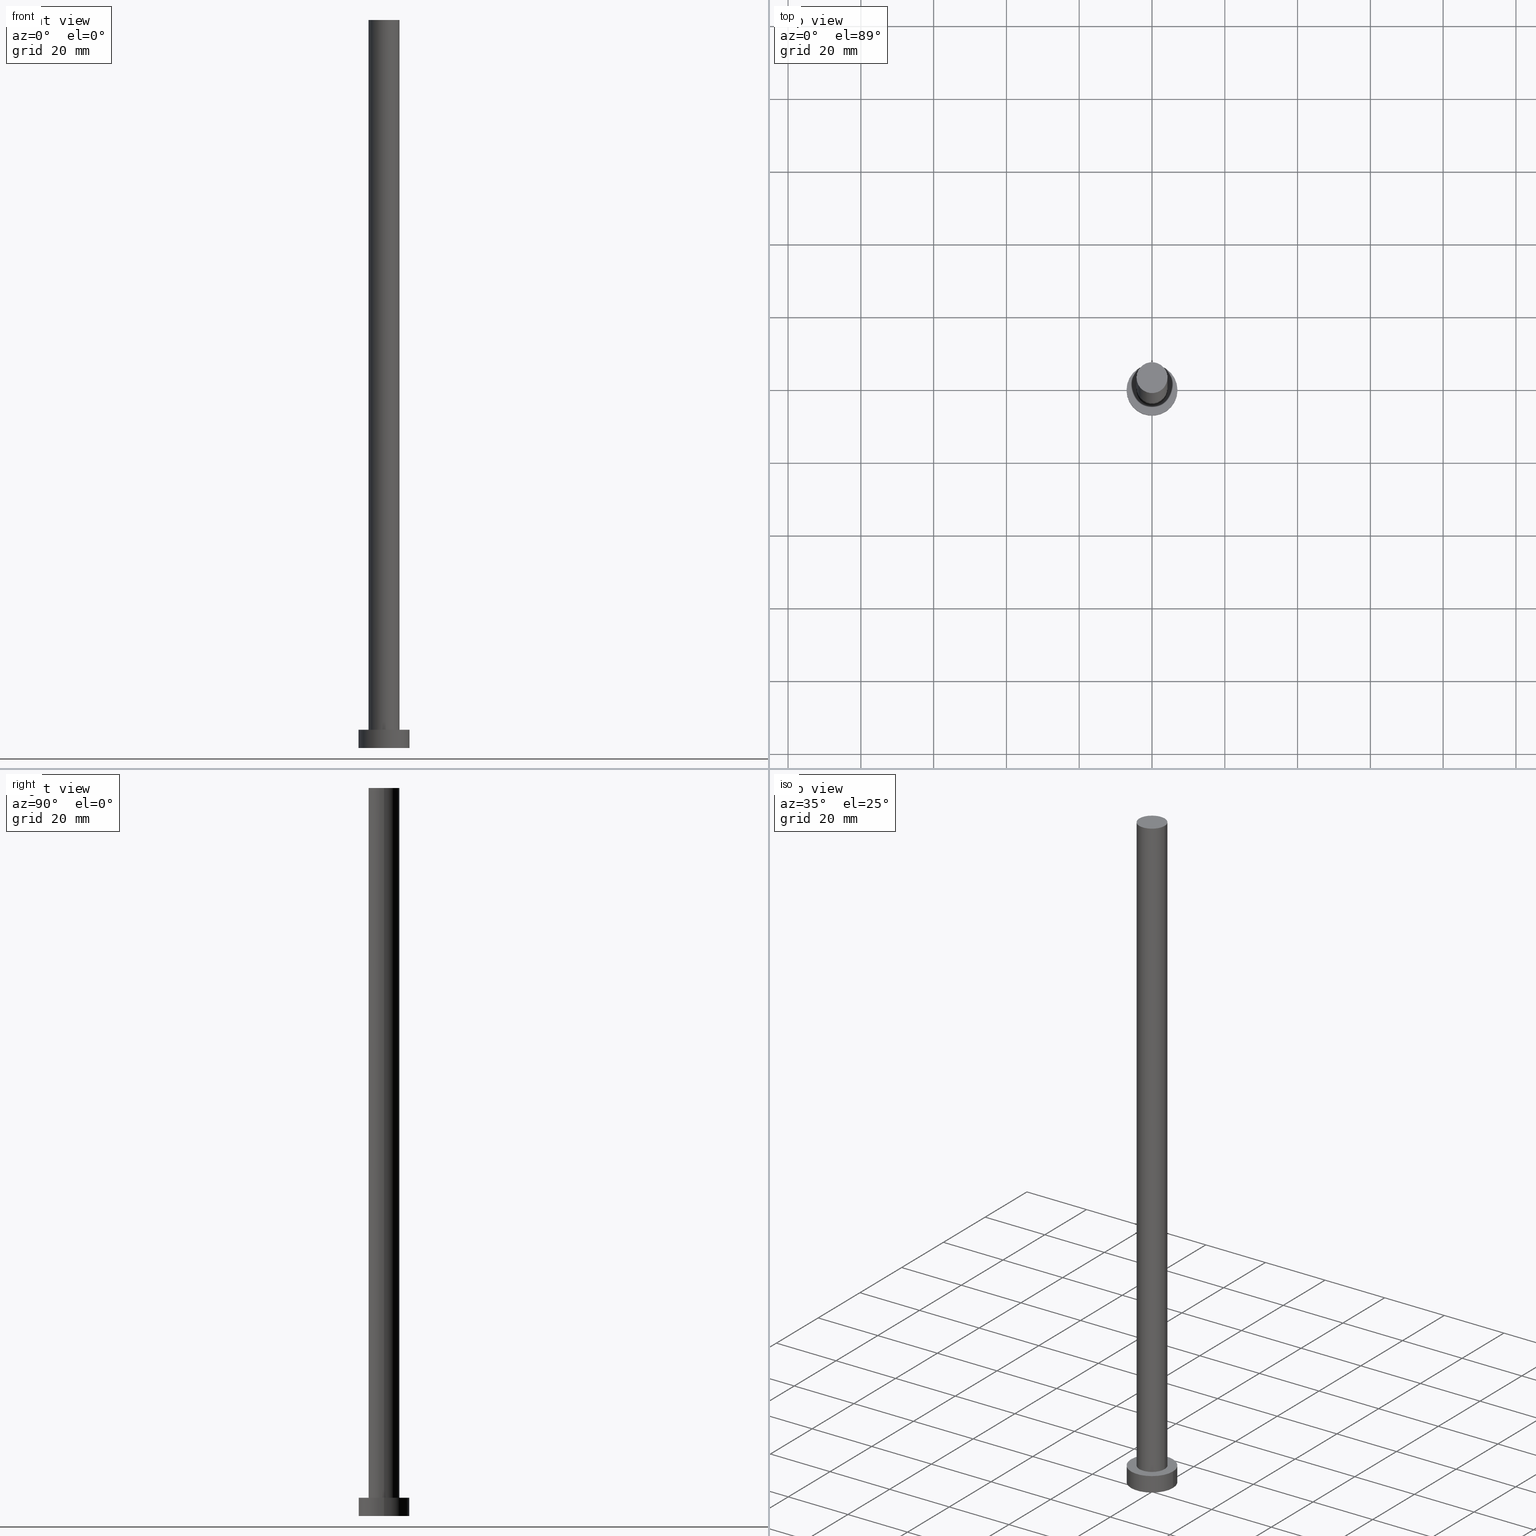
[diagram: canonical four-view strip — front | top / right | iso, engineering-drawing reading convention]
A machine part, canonical four-view strip (front | top / right | iso — engineering-drawing reading convention). The complete STEP part file that produces these views, byte-faithful:
ISO-10303-21;
HEADER;
FILE_DESCRIPTION (( 'STEP AP203' ),
    '1' );
FILE_NAME ('b32a.STEP',
    '2023-02-13T13:53:23',
    ( '' ),
    ( '' ),
    'SwSTEP 2.0',
    'SolidWorks 2019',
    '' );
FILE_SCHEMA (( 'CONFIG_CONTROL_DESIGN' ));
ENDSEC;

DATA;
#1 = PERSON_AND_ORGANIZATION ( #107, #112 ) ;
#2 = CIRCLE ( 'NONE', #145, 4.250000000000000000 ) ;
#3 = FACE_OUTER_BOUND ( 'NONE', #15, .T. ) ;
#4 = LOCAL_TIME ( 14, 53, 23.00000000000000000, #10 ) ;
#5 = LINE ( 'NONE', #56, #81 ) ;
#6 = AXIS2_PLACEMENT_3D ( 'NONE', #20, #221, #121 ) ;
#7 = DIRECTION ( 'NONE',  ( 1.000000000000000000, 0.000000000000000000, 0.000000000000000000 ) ) ;
#8 = DIRECTION ( 'NONE',  ( 0.000000000000000000, 0.000000000000000000, 1.000000000000000000 ) ) ;
#9 = PRODUCT_DEFINITION ( 'NEZN�M�', '', #25, #76 ) ;
#10 = COORDINATED_UNIVERSAL_TIME_OFFSET ( 1, 0, .AHEAD. ) ;
#11 = PERSON_AND_ORGANIZATION ( #107, #112 ) ;
#12 = ORIENTED_EDGE ( 'NONE', *, *, #79, .F. ) ;
#13 = VERTEX_POINT ( 'NONE', #32 ) ;
#14 = AXIS2_PLACEMENT_3D ( 'NONE', #126, #165, #78 ) ;
#15 = EDGE_LOOP ( 'NONE', ( #28, #207, #44, #172 ) ) ;
#16 = APPROVAL_DATE_TIME ( #187, #62 ) ;
#17 = CIRCLE ( 'NONE', #211, 7.000000000000000000 ) ;
#18 = CYLINDRICAL_SURFACE ( 'NONE', #100, 7.000000000000000000 ) ;
#19 = CARTESIAN_POINT ( 'NONE',  ( 4.250000000000000000, 5.204748896376250699E-16, 5.000000000000000000 ) ) ;
#20 = CARTESIAN_POINT ( 'NONE',  ( 0.000000000000000000, 0.000000000000000000, 0.000000000000000000 ) ) ;
#21 = UNCERTAINTY_MEASURE_WITH_UNIT (LENGTH_MEASURE( 1.000000000000000082E-05 ), #182, 'distance_accuracy_value', 'NONE');
#22 = ADVANCED_FACE ( 'NONE', ( #113, #246 ), #230, .T. ) ;
#23 = CARTESIAN_POINT ( 'NONE',  ( 0.000000000000000000, 0.000000000000000000, 200.0000000000000000 ) ) ;
#24 = CARTESIAN_POINT ( 'NONE',  ( 0.000000000000000000, 0.000000000000000000, 0.000000000000000000 ) ) ;
#25 = PRODUCT_DEFINITION_FORMATION_WITH_SPECIFIED_SOURCE ( 'LIBOVOLN�', '', #48, .NOT_KNOWN. ) ;
#26 = EDGE_CURVE ( 'NONE', #63, #42, #250, .T. ) ;
#27 = DATE_TIME_ROLE ( 'creation_date' ) ;
#28 = ORIENTED_EDGE ( 'NONE', *, *, #94, .F. ) ;
#29 = ORIENTED_EDGE ( 'NONE', *, *, #209, .T. ) ;
#30 = EDGE_LOOP ( 'NONE', ( #29, #248 ) ) ;
#31 = LOCAL_TIME ( 14, 53, 23.00000000000000000, #162 ) ;
#32 = CARTESIAN_POINT ( 'NONE',  ( -7.000000000000000000, 0.000000000000000000, 0.000000000000000000 ) ) ;
#33 = APPROVAL_STATUS ( 'not_yet_approved' ) ;
#34 = CALENDAR_DATE ( 2023, 13, 2 ) ;
#35 = CARTESIAN_POINT ( 'NONE',  ( 7.000000000000000000, 8.572527594031473190E-16, 5.000000000000000000 ) ) ;
#36 = APPLICATION_CONTEXT ( 'configuration controlled 3d designs of mechanical parts and assemblies' ) ;
#37 = PERSON_AND_ORGANIZATION_ROLE ( 'creator' ) ;
#38 = DIRECTION ( 'NONE',  ( 0.000000000000000000, 0.000000000000000000, 1.000000000000000000 ) ) ;
#39 = DIRECTION ( 'NONE',  ( 0.000000000000000000, 0.000000000000000000, 1.000000000000000000 ) ) ;
#40 = ADVANCED_FACE ( 'NONE', ( #247 ), #65, .T. ) ;
#41 = DATE_AND_TIME ( #60, #102 ) ;
#42 = VERTEX_POINT ( 'NONE', #156 ) ;
#43 = CC_DESIGN_PERSON_AND_ORGANIZATION_ASSIGNMENT ( #226, #87, ( #9 ) ) ;
#44 = ORIENTED_EDGE ( 'NONE', *, *, #244, .T. ) ;
#45 = VERTEX_POINT ( 'NONE', #86 ) ;
#46 = ADVANCED_FACE ( 'NONE', ( #3 ), #18, .T. ) ;
#47 = ORIENTED_EDGE ( 'NONE', *, *, #119, .T. ) ;
#48 = PRODUCT ( 'b32a', 'b32a', '', ( #149 ) ) ;
#49 = APPROVAL_PERSON_ORGANIZATION ( #114, #62, #194 ) ;
#50 = DIRECTION ( 'NONE',  ( 0.000000000000000000, 0.000000000000000000, 1.000000000000000000 ) ) ;
#51 = CC_DESIGN_APPROVAL ( #128, ( #151 ) ) ;
#52 = CC_DESIGN_PERSON_AND_ORGANIZATION_ASSIGNMENT ( #254, #117, ( #25 ) ) ;
#53 = AXIS2_PLACEMENT_3D ( 'NONE', #253, #50, #137 ) ;
#54 = CARTESIAN_POINT ( 'NONE',  ( 0.000000000000000000, 0.000000000000000000, 200.0000000000000000 ) ) ;
#55 =( GEOMETRIC_REPRESENTATION_CONTEXT ( 3 ) GLOBAL_UNCERTAINTY_ASSIGNED_CONTEXT ( ( #21 ) ) GLOBAL_UNIT_ASSIGNED_CONTEXT ( ( #182, #101, #57 ) ) REPRESENTATION_CONTEXT ( 'NONE', 'WORKASPACE' ) );
#56 = CARTESIAN_POINT ( 'NONE',  ( -4.250000000000000000, 0.000000000000000000, 200.0000000000000000 ) ) ;
#57 =( NAMED_UNIT ( * ) SI_UNIT ( $, .STERADIAN. ) SOLID_ANGLE_UNIT ( ) );
#58 = CYLINDRICAL_SURFACE ( 'NONE', #233, 4.250000000000000000 ) ;
#59 = AXIS2_PLACEMENT_3D ( 'NONE', #24, #39, #200 ) ;
#60 = CALENDAR_DATE ( 2023, 13, 2 ) ;
#61 = EDGE_LOOP ( 'NONE', ( #111, #83, #47, #225 ) ) ;
#62 = APPROVAL ( #33, 'NEUR�EN�' ) ;
#63 = VERTEX_POINT ( 'NONE', #251 ) ;
#64 = DIRECTION ( 'NONE',  ( 1.000000000000000000, 0.000000000000000000, 0.000000000000000000 ) ) ;
#65 = CYLINDRICAL_SURFACE ( 'NONE', #191, 7.000000000000000000 ) ;
#66 = APPLICATION_CONTEXT ( 'configuration controlled 3d designs of mechanical parts and assemblies' ) ;
#67 = VERTEX_POINT ( 'NONE', #19 ) ;
#68 = EDGE_CURVE ( 'NONE', #45, #13, #116, .T. ) ;
#69 = ORIENTED_EDGE ( 'NONE', *, *, #170, .T. ) ;
#70 = CARTESIAN_POINT ( 'NONE',  ( 0.000000000000000000, 0.000000000000000000, 0.000000000000000000 ) ) ;
#71 = CIRCLE ( 'NONE', #59, 7.000000000000000000 ) ;
#72 = DIRECTION ( 'NONE',  ( -0.000000000000000000, -0.000000000000000000, -1.000000000000000000 ) ) ;
#73 = DIRECTION ( 'NONE',  ( 1.000000000000000000, 0.000000000000000000, -0.000000000000000000 ) ) ;
#74 = COORDINATED_UNIVERSAL_TIME_OFFSET ( 1, 0, .AHEAD. ) ;
#75 = DATE_AND_TIME ( #97, #181 ) ;
#76 = DESIGN_CONTEXT ( 'detailed design', #66, 'design' ) ;
#77 = CC_DESIGN_APPROVAL ( #62, ( #9 ) ) ;
#78 = DIRECTION ( 'NONE',  ( 1.000000000000000000, 0.000000000000000000, 0.000000000000000000 ) ) ;
#79 = EDGE_CURVE ( 'NONE', #63, #67, #255, .T. ) ;
#80 = DIRECTION ( 'NONE',  ( -1.000000000000000000, 0.000000000000000000, 0.000000000000000000 ) ) ;
#81 = VECTOR ( 'NONE', #163, 1000.000000000000000 ) ;
#82 = APPLICATION_PROTOCOL_DEFINITION ( 'international standard', 'config_control_design', 1994, #66 ) ;
#83 = ORIENTED_EDGE ( 'NONE', *, *, #79, .T. ) ;
#84 = DIRECTION ( 'NONE',  ( 0.000000000000000000, 0.000000000000000000, 1.000000000000000000 ) ) ;
#85 = CLOSED_SHELL ( 'NONE', ( #217, #46, #40, #22, #146, #193, #115 ) ) ;
#86 = CARTESIAN_POINT ( 'NONE',  ( -7.000000000000000000, 0.000000000000000000, 5.000000000000000000 ) ) ;
#87 = PERSON_AND_ORGANIZATION_ROLE ( 'creator' ) ;
#88 = DIRECTION ( 'NONE',  ( -0.000000000000000000, -0.000000000000000000, -1.000000000000000000 ) ) ;
#89 = PRODUCT_DEFINITION_SHAPE ( 'NONE', 'NONE',  #9 ) ;
#90 = CC_DESIGN_SECURITY_CLASSIFICATION ( #151, ( #25 ) ) ;
#91 = EDGE_CURVE ( 'NONE', #42, #63, #243, .T. ) ;
#92 = CARTESIAN_POINT ( 'NONE',  ( 0.000000000000000000, 0.000000000000000000, 200.0000000000000000 ) ) ;
#93 = CARTESIAN_POINT ( 'NONE',  ( 0.000000000000000000, 0.000000000000000000, 5.000000000000000000 ) ) ;
#94 = EDGE_CURVE ( 'NONE', #106, #45, #180, .T. ) ;
#95 = DIRECTION ( 'NONE',  ( 1.000000000000000000, 0.000000000000000000, 0.000000000000000000 ) ) ;
#96 = CC_DESIGN_APPROVAL ( #198, ( #25 ) ) ;
#97 = CALENDAR_DATE ( 2023, 13, 2 ) ;
#98 = CALENDAR_DATE ( 2023, 13, 2 ) ;
#99 = FACE_OUTER_BOUND ( 'NONE', #208, .T. ) ;
#100 = AXIS2_PLACEMENT_3D ( 'NONE', #213, #154, #214 ) ;
#101 =( NAMED_UNIT ( * ) PLANE_ANGLE_UNIT ( ) SI_UNIT ( $, .RADIAN. ) );
#102 = LOCAL_TIME ( 14, 53, 23.00000000000000000, #206 ) ;
#103 = CARTESIAN_POINT ( 'NONE',  ( 0.000000000000000000, 0.000000000000000000, 0.000000000000000000 ) ) ;
#104 = PERSON_AND_ORGANIZATION_ROLE ( 'design_owner' ) ;
#105 = EDGE_CURVE ( 'NONE', #106, #131, #160, .T. ) ;
#106 = VERTEX_POINT ( 'NONE', #35 ) ;
#107 = PERSON ( 'NEUR�EN�', 'NEUR�EN�', 'NEUR�EN�', ('NEUR�EN�'), ('NEUR�EN�'), ('NEUR�EN�') ) ;
#108 = CARTESIAN_POINT ( 'NONE',  ( 0.000000000000000000, 0.000000000000000000, 200.0000000000000000 ) ) ;
#109 = ORIENTED_EDGE ( 'NONE', *, *, #170, .F. ) ;
#110 = AXIS2_PLACEMENT_3D ( 'NONE', #93, #179, #138 ) ;
#111 = ORIENTED_EDGE ( 'NONE', *, *, #26, .F. ) ;
#112 = ORGANIZATION ( 'NEUR�EN�', 'NEUR�EN�', '' ) ;
#113 = FACE_BOUND ( 'NONE', #249, .T. ) ;
#114 = PERSON_AND_ORGANIZATION ( #107, #112 ) ;
#115 = ADVANCED_FACE ( 'NONE', ( #143 ), #195, .T. ) ;
#116 = LINE ( 'NONE', #178, #159 ) ;
#117 = PERSON_AND_ORGANIZATION_ROLE ( 'design_supplier' ) ;
#118 = CARTESIAN_POINT ( 'NONE',  ( 0.000000000000000000, 0.000000000000000000, 5.000000000000000000 ) ) ;
#119 = EDGE_CURVE ( 'NONE', #67, #153, #2, .T. ) ;
#120 = DIRECTION ( 'NONE',  ( -1.000000000000000000, 0.000000000000000000, 0.000000000000000000 ) ) ;
#121 = DIRECTION ( 'NONE',  ( 1.000000000000000000, 0.000000000000000000, -0.000000000000000000 ) ) ;
#122 = AXIS2_PLACEMENT_3D ( 'NONE', #70, #252, #64 ) ;
#123 = ORIENTED_EDGE ( 'NONE', *, *, #26, .T. ) ;
#124 = DIRECTION ( 'NONE',  ( -0.000000000000000000, -0.000000000000000000, -1.000000000000000000 ) ) ;
#125 = AXIS2_PLACEMENT_3D ( 'NONE', #108, #84, #171 ) ;
#126 = CARTESIAN_POINT ( 'NONE',  ( 0.000000000000000000, 0.000000000000000000, 5.000000000000000000 ) ) ;
#127 = AXIS2_PLACEMENT_3D ( 'NONE', #183, #8, #95 ) ;
#128 = APPROVAL ( #235, 'NEUR�EN�' ) ;
#129 = COORDINATED_UNIVERSAL_TIME_OFFSET ( 1, 0, .AHEAD. ) ;
#130 = APPROVAL_ROLE ( '' ) ;
#131 = VERTEX_POINT ( 'NONE', #161 ) ;
#132 = ORIENTED_EDGE ( 'NONE', *, *, #91, .T. ) ;
#133 = EDGE_CURVE ( 'NONE', #13, #131, #17, .T. ) ;
#134 = EDGE_LOOP ( 'NONE', ( #12, #205, #168, #69 ) ) ;
#135 = ORIENTED_EDGE ( 'NONE', *, *, #133, .F. ) ;
#136 = APPLICATION_PROTOCOL_DEFINITION ( 'international standard', 'config_control_design', 1994, #36 ) ;
#137 = DIRECTION ( 'NONE',  ( 1.000000000000000000, 0.000000000000000000, 0.000000000000000000 ) ) ;
#138 = DIRECTION ( 'NONE',  ( 1.000000000000000000, 0.000000000000000000, 0.000000000000000000 ) ) ;
#139 = PERSON_AND_ORGANIZATION_ROLE ( 'classification_officer' ) ;
#140 = CC_DESIGN_PERSON_AND_ORGANIZATION_ASSIGNMENT ( #228, #104, ( #48 ) ) ;
#141 = LOCAL_TIME ( 14, 53, 23.00000000000000000, #129 ) ;
#142 = PERSON_AND_ORGANIZATION ( #107, #112 ) ;
#143 = FACE_OUTER_BOUND ( 'NONE', #190, .T. ) ;
#144 = FACE_OUTER_BOUND ( 'NONE', #134, .T. ) ;
#145 = AXIS2_PLACEMENT_3D ( 'NONE', #118, #38, #222 ) ;
#146 = ADVANCED_FACE ( 'NONE', ( #99 ), #220, .F. ) ;
#147 = APPROVAL_PERSON_ORGANIZATION ( #245, #198, #130 ) ;
#148 = ADVANCED_BREP_SHAPE_REPRESENTATION ( 'b32a', ( #158, #122 ), #55 ) ;
#149 = MECHANICAL_CONTEXT ( 'NONE', #36, 'mechanical' ) ;
#150 = DIRECTION ( 'NONE',  ( 1.000000000000000000, 0.000000000000000000, -0.000000000000000000 ) ) ;
#151 = SECURITY_CLASSIFICATION ( '', '', #197 ) ;
#152 = CC_DESIGN_DATE_AND_TIME_ASSIGNMENT ( #216, #239, ( #151 ) ) ;
#153 = VERTEX_POINT ( 'NONE', #202 ) ;
#154 = DIRECTION ( 'NONE',  ( -0.000000000000000000, -0.000000000000000000, -1.000000000000000000 ) ) ;
#155 = DIRECTION ( 'NONE',  ( -0.000000000000000000, -0.000000000000000000, -1.000000000000000000 ) ) ;
#156 = CARTESIAN_POINT ( 'NONE',  ( -4.250000000000000000, 0.000000000000000000, 200.0000000000000000 ) ) ;
#157 = SHAPE_DEFINITION_REPRESENTATION ( #89, #148 ) ;
#158 = MANIFOLD_SOLID_BREP ( 'P�idat vysunut�m3', #85 ) ;
#159 = VECTOR ( 'NONE', #72, 1000.000000000000000 ) ;
#160 = LINE ( 'NONE', #238, #166 ) ;
#161 = CARTESIAN_POINT ( 'NONE',  ( 7.000000000000000000, 8.572527594031473190E-16, 0.000000000000000000 ) ) ;
#162 = COORDINATED_UNIVERSAL_TIME_OFFSET ( 1, 0, .AHEAD. ) ;
#163 = DIRECTION ( 'NONE',  ( -0.000000000000000000, -0.000000000000000000, -1.000000000000000000 ) ) ;
#164 = CC_DESIGN_PERSON_AND_ORGANIZATION_ASSIGNMENT ( #11, #37, ( #25 ) ) ;
#165 = DIRECTION ( 'NONE',  ( 0.000000000000000000, 0.000000000000000000, 1.000000000000000000 ) ) ;
#166 = VECTOR ( 'NONE', #215, 1000.000000000000000 ) ;
#167 = DATE_AND_TIME ( #176, #4 ) ;
#168 = ORIENTED_EDGE ( 'NONE', *, *, #237, .T. ) ;
#169 = CARTESIAN_POINT ( 'NONE',  ( 0.000000000000000000, 0.000000000000000000, 5.000000000000000000 ) ) ;
#170 = EDGE_CURVE ( 'NONE', #153, #67, #242, .T. ) ;
#171 = DIRECTION ( 'NONE',  ( 1.000000000000000000, 0.000000000000000000, 0.000000000000000000 ) ) ;
#172 = ORIENTED_EDGE ( 'NONE', *, *, #68, .F. ) ;
#173 = AXIS2_PLACEMENT_3D ( 'NONE', #54, #124, #80 ) ;
#174 = ORIENTED_EDGE ( 'NONE', *, *, #68, .T. ) ;
#175 = CC_DESIGN_PERSON_AND_ORGANIZATION_ASSIGNMENT ( #1, #139, ( #151 ) ) ;
#176 = CALENDAR_DATE ( 2023, 13, 2 ) ;
#177 = AXIS2_PLACEMENT_3D ( 'NONE', #92, #218, #73 ) ;
#178 = CARTESIAN_POINT ( 'NONE',  ( -7.000000000000000000, 0.000000000000000000, 5.000000000000000000 ) ) ;
#179 = DIRECTION ( 'NONE',  ( 0.000000000000000000, 0.000000000000000000, 1.000000000000000000 ) ) ;
#180 = CIRCLE ( 'NONE', #110, 7.000000000000000000 ) ;
#181 = LOCAL_TIME ( 14, 53, 23.00000000000000000, #74 ) ;
#182 =( LENGTH_UNIT ( ) NAMED_UNIT ( * ) SI_UNIT ( .MILLI., .METRE. ) );
#183 = CARTESIAN_POINT ( 'NONE',  ( 0.000000000000000000, 0.000000000000000000, 5.000000000000000000 ) ) ;
#184 = APPROVAL_ROLE ( '' ) ;
#185 = DIRECTION ( 'NONE',  ( -0.000000000000000000, -0.000000000000000000, -1.000000000000000000 ) ) ;
#186 = CYLINDRICAL_SURFACE ( 'NONE', #173, 4.250000000000000000 ) ;
#187 = DATE_AND_TIME ( #34, #141 ) ;
#188 = APPROVAL_DATE_TIME ( #41, #198 ) ;
#189 = ORIENTED_EDGE ( 'NONE', *, *, #105, .F. ) ;
#190 = EDGE_LOOP ( 'NONE', ( #132, #123 ) ) ;
#191 = AXIS2_PLACEMENT_3D ( 'NONE', #199, #88, #120 ) ;
#192 = EDGE_LOOP ( 'NONE', ( #189, #210, #174, #232 ) ) ;
#193 = ADVANCED_FACE ( 'NONE', ( #144 ), #186, .T. ) ;
#194 = APPROVAL_ROLE ( '' ) ;
#195 = PLANE ( 'NONE',  #177 ) ;
#196 = CIRCLE ( 'NONE', #14, 7.000000000000000000 ) ;
#197 = SECURITY_CLASSIFICATION_LEVEL ( 'unclassified' ) ;
#198 = APPROVAL ( #224, 'NEUR�EN�' ) ;
#199 = CARTESIAN_POINT ( 'NONE',  ( 0.000000000000000000, 0.000000000000000000, 5.000000000000000000 ) ) ;
#200 = DIRECTION ( 'NONE',  ( 1.000000000000000000, 0.000000000000000000, 0.000000000000000000 ) ) ;
#201 = PRODUCT_RELATED_PRODUCT_CATEGORY ( 'detail', '', ( #48 ) ) ;
#202 = CARTESIAN_POINT ( 'NONE',  ( -4.250000000000000000, 0.000000000000000000, 5.000000000000000000 ) ) ;
#203 = FACE_OUTER_BOUND ( 'NONE', #61, .T. ) ;
#204 = DIRECTION ( 'NONE',  ( -1.000000000000000000, 0.000000000000000000, 0.000000000000000000 ) ) ;
#205 = ORIENTED_EDGE ( 'NONE', *, *, #91, .F. ) ;
#206 = COORDINATED_UNIVERSAL_TIME_OFFSET ( 1, 0, .AHEAD. ) ;
#207 = ORIENTED_EDGE ( 'NONE', *, *, #105, .T. ) ;
#208 = EDGE_LOOP ( 'NONE', ( #135, #212 ) ) ;
#209 = EDGE_CURVE ( 'NONE', #45, #106, #196, .T. ) ;
#210 = ORIENTED_EDGE ( 'NONE', *, *, #209, .F. ) ;
#211 = AXIS2_PLACEMENT_3D ( 'NONE', #103, #240, #7 ) ;
#212 = ORIENTED_EDGE ( 'NONE', *, *, #244, .F. ) ;
#213 = CARTESIAN_POINT ( 'NONE',  ( 0.000000000000000000, 0.000000000000000000, 5.000000000000000000 ) ) ;
#214 = DIRECTION ( 'NONE',  ( -1.000000000000000000, 0.000000000000000000, 0.000000000000000000 ) ) ;
#215 = DIRECTION ( 'NONE',  ( -0.000000000000000000, -0.000000000000000000, -1.000000000000000000 ) ) ;
#216 = DATE_AND_TIME ( #98, #31 ) ;
#217 = ADVANCED_FACE ( 'NONE', ( #203 ), #58, .T. ) ;
#218 = DIRECTION ( 'NONE',  ( 0.000000000000000000, 0.000000000000000000, 1.000000000000000000 ) ) ;
#219 = APPROVAL_DATE_TIME ( #75, #128 ) ;
#220 = PLANE ( 'NONE',  #6 ) ;
#221 = DIRECTION ( 'NONE',  ( 0.000000000000000000, 0.000000000000000000, 1.000000000000000000 ) ) ;
#222 = DIRECTION ( 'NONE',  ( 1.000000000000000000, 0.000000000000000000, 0.000000000000000000 ) ) ;
#223 = VECTOR ( 'NONE', #155, 1000.000000000000000 ) ;
#224 = APPROVAL_STATUS ( 'not_yet_approved' ) ;
#225 = ORIENTED_EDGE ( 'NONE', *, *, #237, .F. ) ;
#226 = PERSON_AND_ORGANIZATION ( #107, #112 ) ;
#227 = DIRECTION ( 'NONE',  ( 0.000000000000000000, 0.000000000000000000, 1.000000000000000000 ) ) ;
#228 = PERSON_AND_ORGANIZATION ( #107, #112 ) ;
#229 = APPROVAL_PERSON_ORGANIZATION ( #142, #128, #184 ) ;
#230 = PLANE ( 'NONE',  #241 ) ;
#231 = ORIENTED_EDGE ( 'NONE', *, *, #119, .F. ) ;
#232 = ORIENTED_EDGE ( 'NONE', *, *, #133, .T. ) ;
#233 = AXIS2_PLACEMENT_3D ( 'NONE', #23, #185, #204 ) ;
#234 = CC_DESIGN_DATE_AND_TIME_ASSIGNMENT ( #167, #27, ( #9 ) ) ;
#235 = APPROVAL_STATUS ( 'not_yet_approved' ) ;
#236 = CARTESIAN_POINT ( 'NONE',  ( 4.250000000000000000, 5.204748896376250699E-16, 200.0000000000000000 ) ) ;
#237 = EDGE_CURVE ( 'NONE', #42, #153, #5, .T. ) ;
#238 = CARTESIAN_POINT ( 'NONE',  ( 7.000000000000000000, 8.572527594031473190E-16, 5.000000000000000000 ) ) ;
#239 = DATE_TIME_ROLE ( 'classification_date' ) ;
#240 = DIRECTION ( 'NONE',  ( 0.000000000000000000, 0.000000000000000000, 1.000000000000000000 ) ) ;
#241 = AXIS2_PLACEMENT_3D ( 'NONE', #169, #227, #150 ) ;
#242 = CIRCLE ( 'NONE', #127, 4.250000000000000000 ) ;
#243 = CIRCLE ( 'NONE', #53, 4.250000000000000000 ) ;
#244 = EDGE_CURVE ( 'NONE', #131, #13, #71, .T. ) ;
#245 = PERSON_AND_ORGANIZATION ( #107, #112 ) ;
#246 = FACE_OUTER_BOUND ( 'NONE', #30, .T. ) ;
#247 = FACE_OUTER_BOUND ( 'NONE', #192, .T. ) ;
#248 = ORIENTED_EDGE ( 'NONE', *, *, #94, .T. ) ;
#249 = EDGE_LOOP ( 'NONE', ( #109, #231 ) ) ;
#250 = CIRCLE ( 'NONE', #125, 4.250000000000000000 ) ;
#251 = CARTESIAN_POINT ( 'NONE',  ( 4.250000000000000000, 5.204748896376250699E-16, 200.0000000000000000 ) ) ;
#252 = DIRECTION ( 'NONE',  ( 0.000000000000000000, 0.000000000000000000, 1.000000000000000000 ) ) ;
#253 = CARTESIAN_POINT ( 'NONE',  ( 0.000000000000000000, 0.000000000000000000, 200.0000000000000000 ) ) ;
#254 = PERSON_AND_ORGANIZATION ( #107, #112 ) ;
#255 = LINE ( 'NONE', #236, #223 ) ;
ENDSEC;
END-ISO-10303-21;
